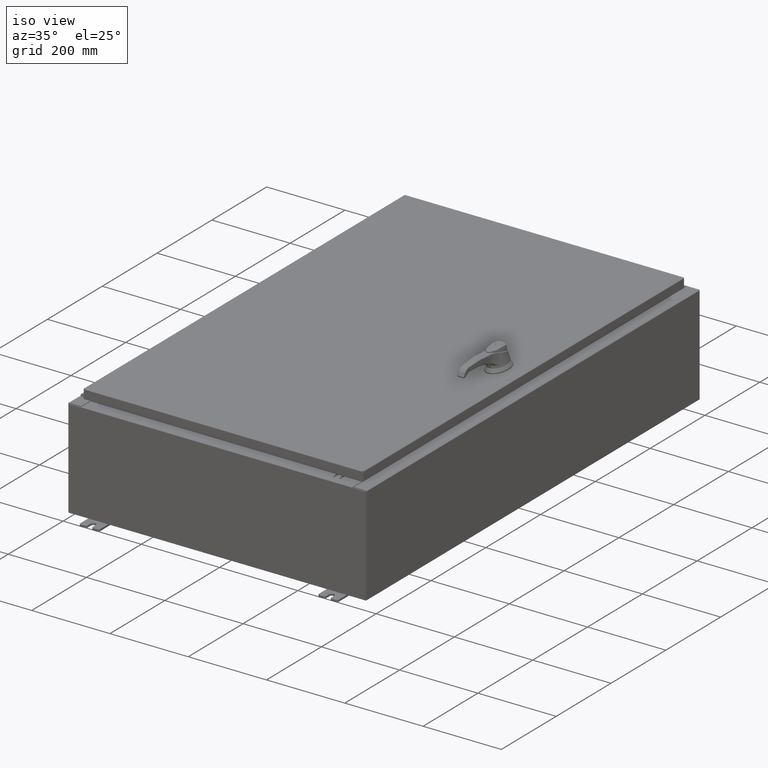
[diagram: clean part render]
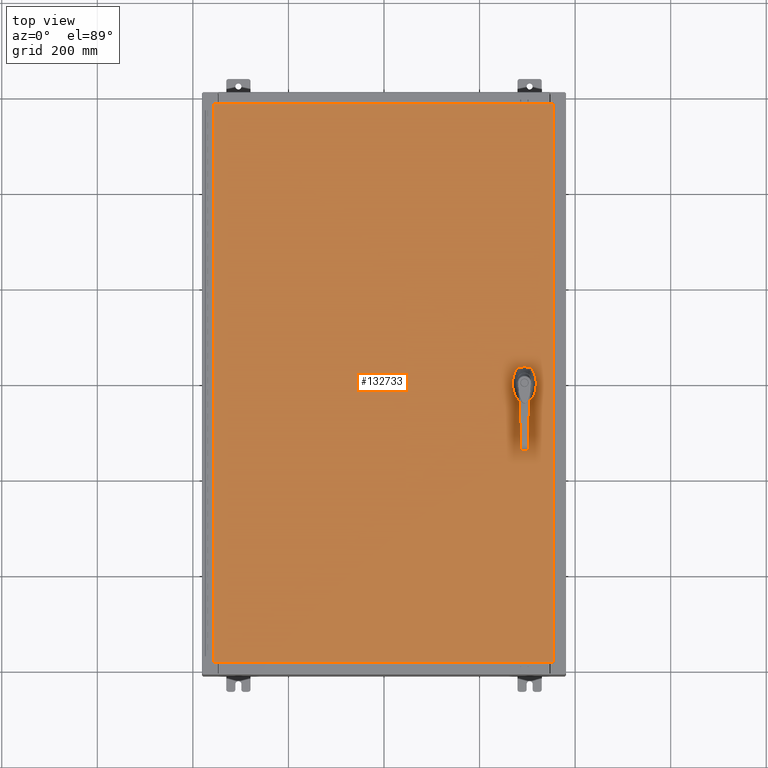
[diagram: tour spotlight — one face highlighted and labeled with its STEP entity id]
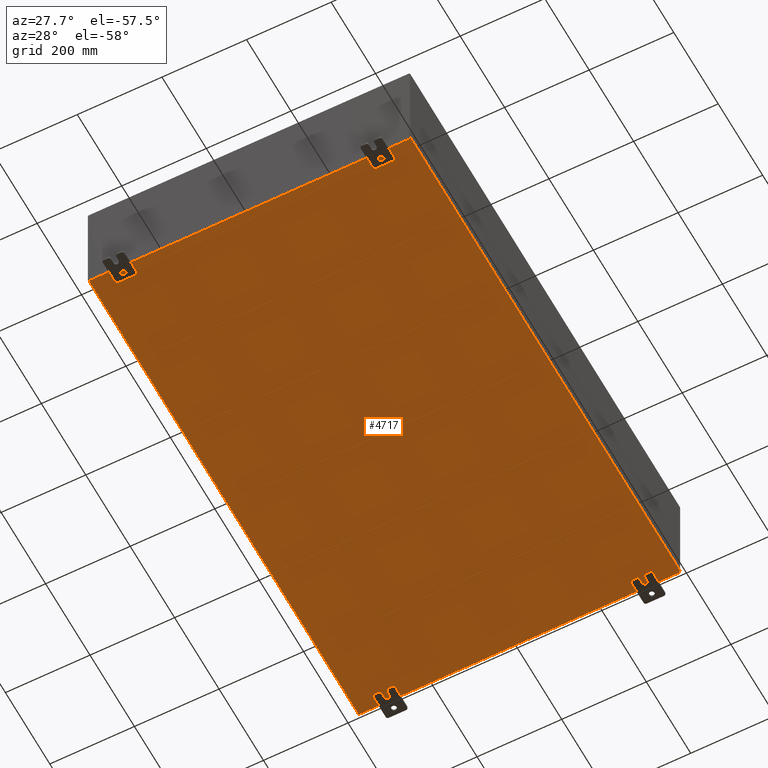
[diagram: tour spotlight — one face highlighted and labeled with its STEP entity id]
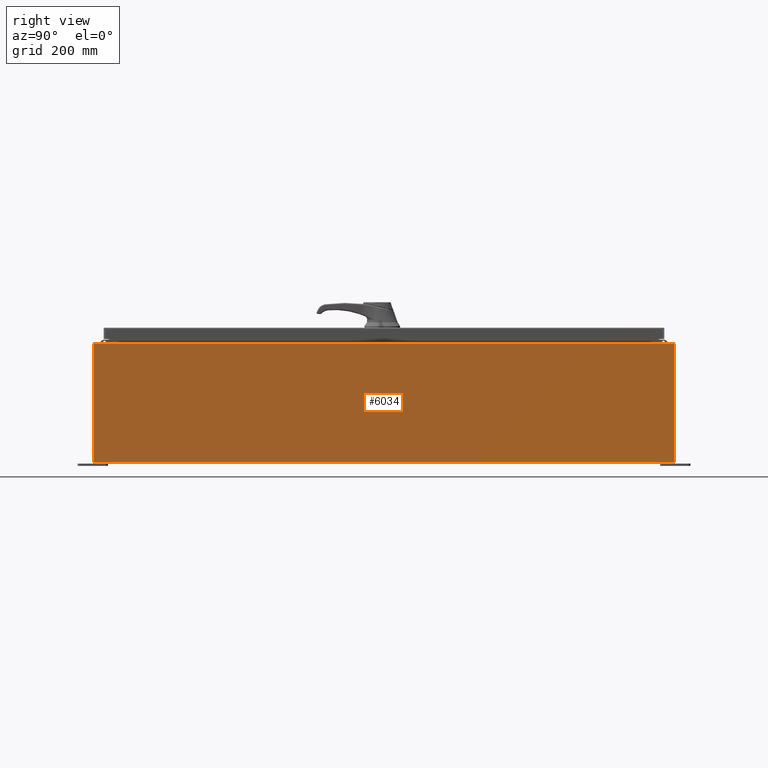
[diagram: tour spotlight — one face highlighted and labeled with its STEP entity id]
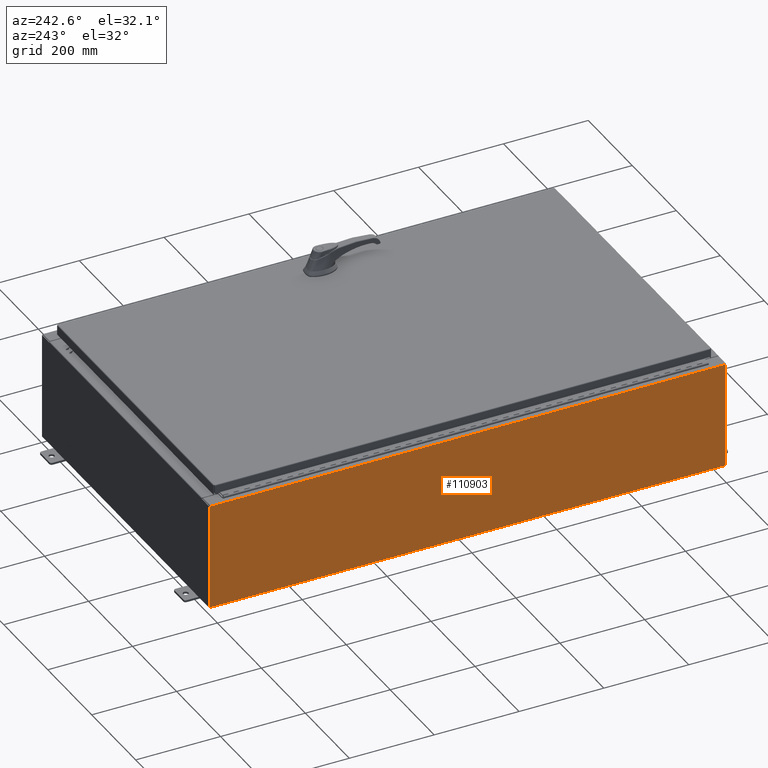
[diagram: tour spotlight — one face highlighted and labeled with its STEP entity id]
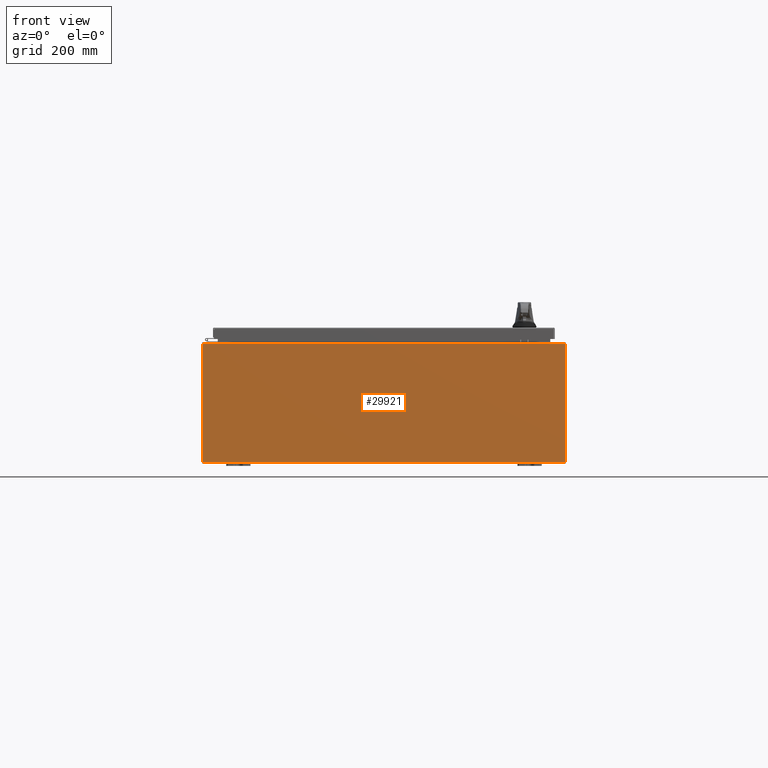
[diagram: tour spotlight — one face highlighted and labeled with its STEP entity id]
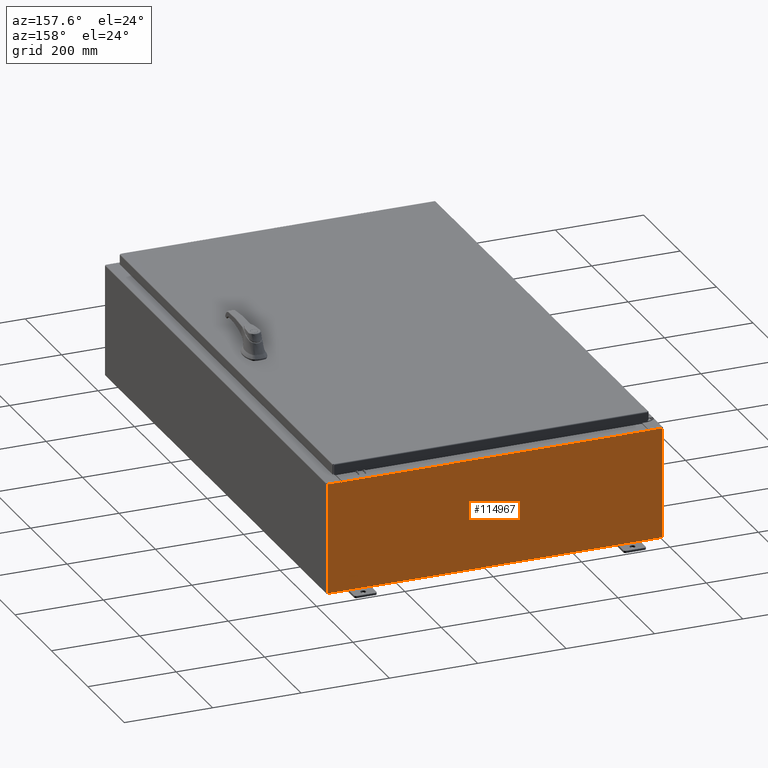
[diagram: tour spotlight — one face highlighted and labeled with its STEP entity id]
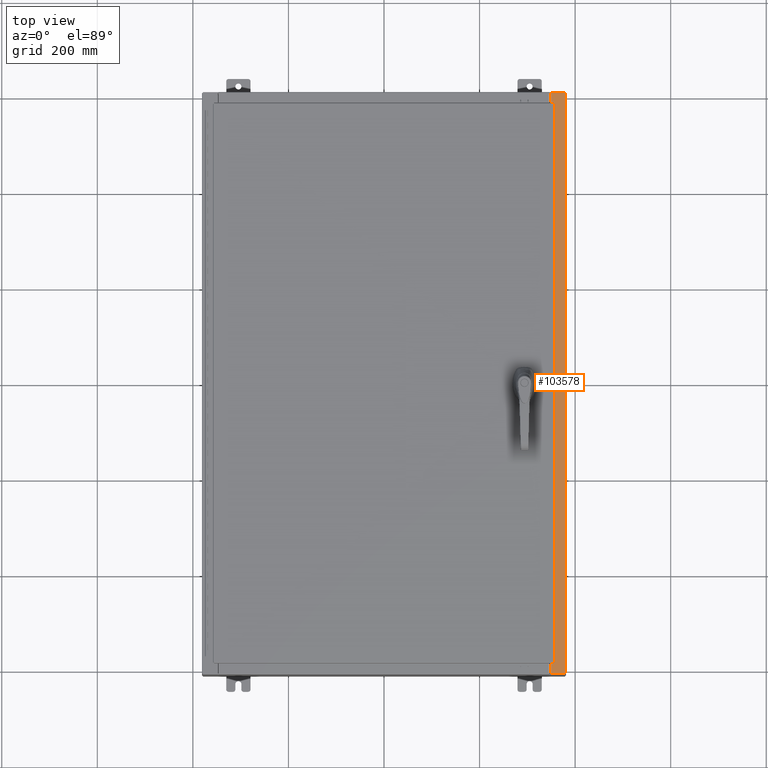
[diagram: tour spotlight — one face highlighted and labeled with its STEP entity id]
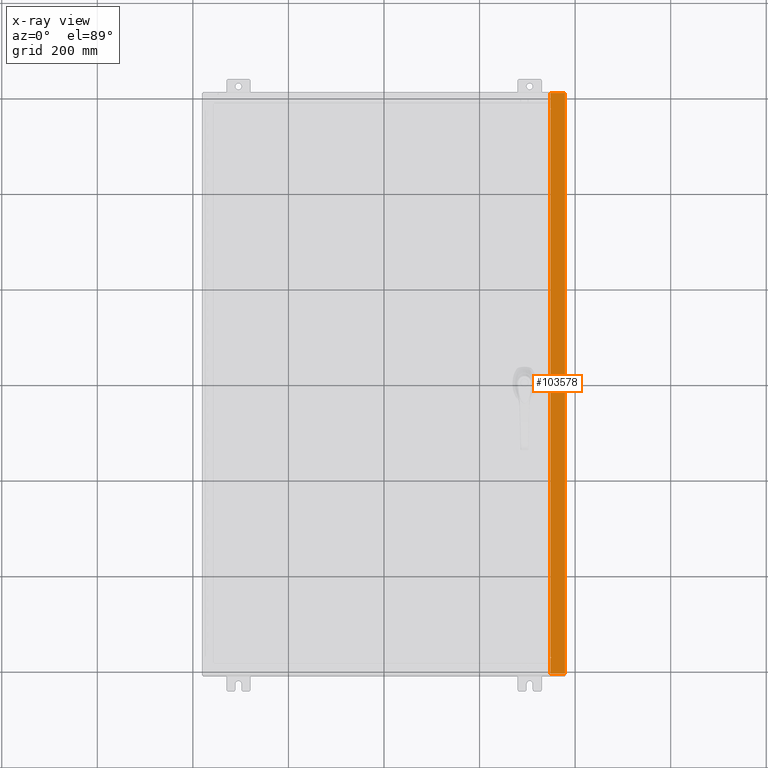
[diagram: x-ray of the same camera — body ghosted, this tour face saturated]
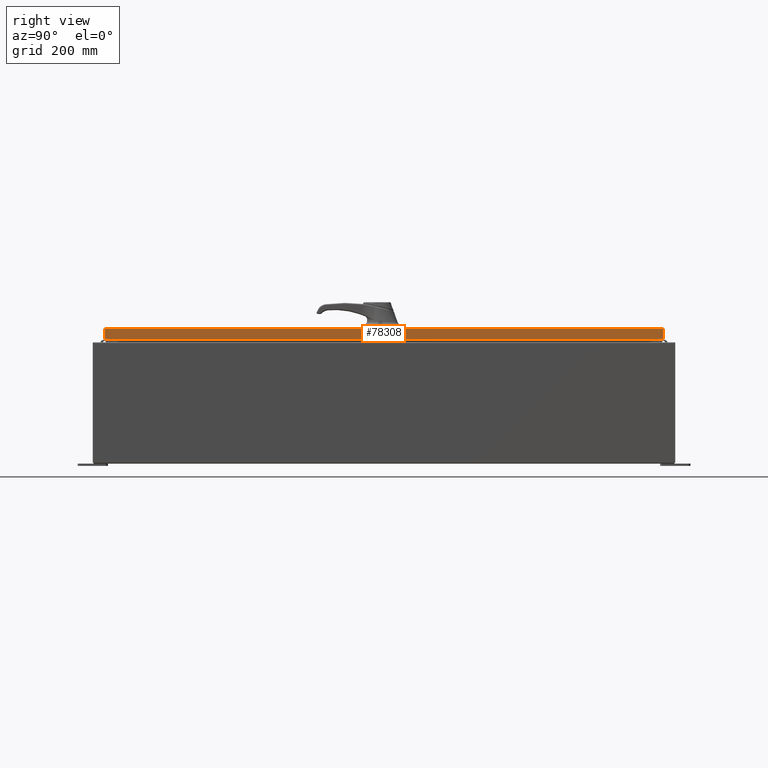
[diagram: tour spotlight — one face highlighted and labeled with its STEP entity id]
A machine part: a face-by-face anatomy tour. The part has 3182 B-rep faces; the first image is the clean iso view, then the 8 largest visible faces are spotlighted one at a time (largest first), each with its STEP entity span.

Face 1 — top view, entity #132733. In plain terms, the highlighted planar face has unit normal (0, 0, -1).
Definition (entity closure, byte-faithful):
#76 = AXIS2_PLACEMENT_3D ( 'NONE', #95451, #33978, #105793 ) ;
#6051 = LINE ( 'NONE', #80805, #91119 ) ;
#6092 = DIRECTION ( 'NONE',  ( 1.000000000000000000, 0.0000000000000000000, 0.0000000000000000000 ) ) ;
#7177 = VERTEX_POINT ( 'NONE', #32672 ) ;
#11046 = AXIS2_PLACEMENT_3D ( 'NONE', #41833, #113717, #52135 ) ;
#14487 = LINE ( 'NONE', #77845, #114141 ) ;
#14532 = LINE ( 'NONE', #124083, #59479 ) ;
#14559 = EDGE_LOOP ( 'NONE', ( #92904, #114180, #69184, #115715, #84004, #30024, #35267, #73037 ) ) ;
#15175 = VERTEX_POINT ( 'NONE', #61845 ) ;
#15653 = CARTESIAN_POINT ( 'NONE',  ( 11.98099999999992500, 0.2002273707563075900, 0.0000000000000000000 ) ) ;
#16899 = CARTESIAN_POINT ( 'NONE',  ( 11.40649999999999600, -1.338000000000000100, 0.0000000000000000000 ) ) ;
#19875 = EDGE_CURVE ( 'NONE', #90393, #56347, #6051, .T. ) ;
#22475 = AXIS2_PLACEMENT_3D ( 'NONE', #109733, #48157, #120121 ) ;
#23193 = VERTEX_POINT ( 'NONE', #118424 ) ;
#23840 = DIRECTION ( 'NONE',  ( 0.0000000000000000000, 0.0000000000000000000, -1.000000000000000000 ) ) ;
#25099 = ORIENTED_EDGE ( 'NONE', *, *, #122695, .T. ) ;
#25235 = CARTESIAN_POINT ( 'NONE',  ( 13.99029999999999800, 23.00630000000001000, 1.946441695485787500E-015 ) ) ;
#26060 = EDGE_CURVE ( 'NONE', #56347, #123203, #81964, .T. ) ;
#27794 = DIRECTION ( 'NONE',  ( -1.000000000000000000, 0.0000000000000000000, 0.0000000000000000000 ) ) ;
#28019 = VECTOR ( 'NONE', #119435, 39.37007874015748100 ) ;
#29792 = CIRCLE ( 'NONE', #22475, 0.1715000000000011500 ) ;
#30024 = ORIENTED_EDGE ( 'NONE', *, *, #65430, .F. ) ;
#32672 = CARTESIAN_POINT ( 'NONE',  ( 11.37777262924368800, 0.4029999999999252000, 0.0000000000000000000 ) ) ;
#33978 = DIRECTION ( 'NONE',  ( -0.0000000000000000000, 0.0000000000000000000, 1.000000000000000000 ) ) ;
#35267 = ORIENTED_EDGE ( 'NONE', *, *, #129996, .F. ) ;
#36678 = CARTESIAN_POINT ( 'NONE',  ( -13.99029999999999800, -23.00630000000000300, 1.946441695485787500E-015 ) ) ;
#38693 = FACE_BOUND ( 'NONE', #84970, .T. ) ;
#40354 = CIRCLE ( 'NONE', #94416, 0.4499999999999168000 ) ;
#40509 = VECTOR ( 'NONE', #98169, 39.37007874015748100 ) ;
#41279 = CARTESIAN_POINT ( 'NONE',  ( 11.57799999999999800, 0.0000000000000000000, 0.0000000000000000000 ) ) ;
#41391 = VERTEX_POINT ( 'NONE', #15653 ) ;
#41833 = CARTESIAN_POINT ( 'NONE',  ( 11.57799999999999800, 0.0000000000000000000, 0.0000000000000000000 ) ) ;
#42702 = VERTEX_POINT ( 'NONE', #25235 ) ;
#43717 = LINE ( 'NONE', #36678, #40509 ) ;
#45728 = ORIENTED_EDGE ( 'NONE', *, *, #70691, .F. ) ;
#46091 = CARTESIAN_POINT ( 'NONE',  ( 13.99029999999999800, -23.00630000000000300, -2.048885995248197400E-016 ) ) ;
#47488 = CARTESIAN_POINT ( 'NONE',  ( 13.99029999999999800, -23.00630000000000300, -2.048885995248197400E-016 ) ) ;
#48157 = DIRECTION ( 'NONE',  ( -0.0000000000000000000, 0.0000000000000000000, 1.000000000000000000 ) ) ;
#48353 = CARTESIAN_POINT ( 'NONE',  ( 11.57799999999999800, 0.0000000000000000000, 0.0000000000000000000 ) ) ;
#51338 = DIRECTION ( 'NONE',  ( 0.0000000000000000000, -1.000000000000000000, 0.0000000000000000000 ) ) ;
#51575 = DIRECTION ( 'NONE',  ( 1.000000000000000000, 0.0000000000000000000, 0.0000000000000000000 ) ) ;
#52078 = DIRECTION ( 'NONE',  ( 5.457491617345625800E-015, -1.000000000000000000, 0.0000000000000000000 ) ) ;
#52135 = DIRECTION ( 'NONE',  ( 1.000000000000000000, 0.0000000000000000000, 0.0000000000000000000 ) ) ;
#52157 = CIRCLE ( 'NONE', #104476, 0.1715000000000011500 ) ;
#53111 = CIRCLE ( 'NONE', #105484, 0.4499999999999168000 ) ;
#55266 = LINE ( 'NONE', #47488, #28019 ) ;
#56347 = VERTEX_POINT ( 'NONE', #122557 ) ;
#58671 = DIRECTION ( 'NONE',  ( 1.000000000000000000, 0.0000000000000000000, 0.0000000000000000000 ) ) ;
#59479 = VECTOR ( 'NONE', #52078, 39.37007874015748100 ) ;
#59649 = VERTEX_POINT ( 'NONE', #16899 ) ;
#60977 = AXIS2_PLACEMENT_3D ( 'NONE', #95204, #23840, #95654 ) ;
#61430 = CARTESIAN_POINT ( 'NONE',  ( 11.57799999999999800, -1.338000000000000100, 0.0000000000000000000 ) ) ;
#61669 = CARTESIAN_POINT ( 'NONE',  ( -13.99029999999999800, 23.00630000000000300, -2.048885995248197400E-016 ) ) ;
#61845 = CARTESIAN_POINT ( 'NONE',  ( 11.77822737075630700, 0.4029999999999252000, 0.0000000000000000000 ) ) ;
#62530 = LINE ( 'NONE', #61669, #104316 ) ;
#62703 = EDGE_CURVE ( 'NONE', #88351, #97739, #53111, .T. ) ;
#63285 = EDGE_CURVE ( 'NONE', #123203, #88351, #14487, .T. ) ;
#64571 = VECTOR ( 'NONE', #95749, 39.37007874015748100 ) ;
#65430 = EDGE_CURVE ( 'NONE', #7177, #90393, #40354, .T. ) ;
#69184 = ORIENTED_EDGE ( 'NONE', *, *, #63285, .F. ) ;
#69740 = EDGE_CURVE ( 'NONE', #41391, #15175, #111911, .T. ) ;
#70691 = EDGE_CURVE ( 'NONE', #73940, #59649, #29792, .T. ) ;
#71674 = DIRECTION ( 'NONE',  ( 1.000000000000000000, 0.0000000000000000000, 0.0000000000000000000 ) ) ;
#73037 = ORIENTED_EDGE ( 'NONE', *, *, #69740, .F. ) ;
#73399 = CARTESIAN_POINT ( 'NONE',  ( 11.98099999999992700, -0.2002273707563079800, 0.0000000000000000000 ) ) ;
#73940 = VERTEX_POINT ( 'NONE', #115493 ) ;
#74005 = ORIENTED_EDGE ( 'NONE', *, *, #78993, .T. ) ;
#77845 = CARTESIAN_POINT ( 'NONE',  ( 0.0000000000000000000, -0.4029999999999252000, 0.0000000000000000000 ) ) ;
#78993 = EDGE_CURVE ( 'NONE', #94256, #23193, #62530, .T. ) ;
#79581 = ORIENTED_EDGE ( 'NONE', *, *, #90872, .T. ) ;
#80805 = CARTESIAN_POINT ( 'NONE',  ( 11.17500000000007000, 0.0000000000000000000, 0.0000000000000000000 ) ) ;
#81664 = CARTESIAN_POINT ( 'NONE',  ( -13.99029999999999800, 23.00630000000001000, -2.048885995248197400E-016 ) ) ;
#81964 = CIRCLE ( 'NONE', #11046, 0.4499999999999168000 ) ;
#82442 = VECTOR ( 'NONE', #27794, 39.37007874015748100 ) ;
#83378 = EDGE_CURVE ( 'NONE', #41391, #97739, #14532, .T. ) ;
#84004 = ORIENTED_EDGE ( 'NONE', *, *, #19875, .F. ) ;
#84970 = EDGE_LOOP ( 'NONE', ( #45728, #105997 ) ) ;
#85249 = PLANE ( 'NONE',  #60977 ) ;
#85357 = CARTESIAN_POINT ( 'NONE',  ( 13.99029999999999800, 23.00630000000001000, 1.946441695485787500E-015 ) ) ;
#88351 = VERTEX_POINT ( 'NONE', #92901 ) ;
#90393 = VERTEX_POINT ( 'NONE', #132452 ) ;
#90872 = EDGE_CURVE ( 'NONE', #42702, #94256, #91927, .T. ) ;
#91119 = VECTOR ( 'NONE', #111479, 39.37007874015748100 ) ;
#91927 = LINE ( 'NONE', #85357, #64571 ) ;
#92901 = CARTESIAN_POINT ( 'NONE',  ( 11.77822737075630700, -0.4029999999999252000, 0.0000000000000000000 ) ) ;
#92904 = ORIENTED_EDGE ( 'NONE', *, *, #83378, .T. ) ;
#94256 = VERTEX_POINT ( 'NONE', #81664 ) ;
#94416 = AXIS2_PLACEMENT_3D ( 'NONE', #41279, #113181, #51575 ) ;
#95204 = CARTESIAN_POINT ( 'NONE',  ( 0.0000000000000000000, 0.0000000000000000000, 0.0000000000000000000 ) ) ;
#95451 = CARTESIAN_POINT ( 'NONE',  ( 11.57799999999999800, 0.0000000000000000000, 0.0000000000000000000 ) ) ;
#95654 = DIRECTION ( 'NONE',  ( -1.000000000000000000, 0.0000000000000000000, -0.0000000000000000000 ) ) ;
#95749 = DIRECTION ( 'NONE',  ( -1.000000000000000000, -0.0000000000000000000, -0.0000000000000000000 ) ) ;
#97491 = EDGE_LOOP ( 'NONE', ( #25099, #130630, #79581, #74005 ) ) ;
#97739 = VERTEX_POINT ( 'NONE', #73399 ) ;
#98169 = DIRECTION ( 'NONE',  ( 1.000000000000000000, -0.0000000000000000000, -0.0000000000000000000 ) ) ;
#100557 = EDGE_CURVE ( 'NONE', #59649, #73940, #52157, .T. ) ;
#104316 = VECTOR ( 'NONE', #51338, 39.37007874015748100 ) ;
#104476 = AXIS2_PLACEMENT_3D ( 'NONE', #61430, #133432, #71674 ) ;
#105484 = AXIS2_PLACEMENT_3D ( 'NONE', #48353, #120312, #58671 ) ;
#105793 = DIRECTION ( 'NONE',  ( 1.000000000000000000, 0.0000000000000000000, 0.0000000000000000000 ) ) ;
#105997 = ORIENTED_EDGE ( 'NONE', *, *, #100557, .F. ) ;
#109733 = CARTESIAN_POINT ( 'NONE',  ( 11.57799999999999800, -1.338000000000000100, 0.0000000000000000000 ) ) ;
#111479 = DIRECTION ( 'NONE',  ( 0.0000000000000000000, -1.000000000000000000, 0.0000000000000000000 ) ) ;
#111911 = CIRCLE ( 'NONE', #76, 0.4499999999999168000 ) ;
#113117 = LINE ( 'NONE', #120833, #82442 ) ;
#113181 = DIRECTION ( 'NONE',  ( -0.0000000000000000000, 0.0000000000000000000, 1.000000000000000000 ) ) ;
#113717 = DIRECTION ( 'NONE',  ( -0.0000000000000000000, 0.0000000000000000000, 1.000000000000000000 ) ) ;
#114141 = VECTOR ( 'NONE', #6092, 39.37007874015748100 ) ;
#114180 = ORIENTED_EDGE ( 'NONE', *, *, #62703, .F. ) ;
#114309 = CARTESIAN_POINT ( 'NONE',  ( 11.37777262924368800, -0.4029999999999252000, 0.0000000000000000000 ) ) ;
#115493 = CARTESIAN_POINT ( 'NONE',  ( 11.74949999999999900, -1.338000000000000100, 0.0000000000000000000 ) ) ;
#115715 = ORIENTED_EDGE ( 'NONE', *, *, #26060, .F. ) ;
#118424 = CARTESIAN_POINT ( 'NONE',  ( -13.99029999999999800, -23.00630000000000300, 1.946441695485787500E-015 ) ) ;
#119435 = DIRECTION ( 'NONE',  ( 0.0000000000000000000, 1.000000000000000000, 0.0000000000000000000 ) ) ;
#120121 = DIRECTION ( 'NONE',  ( 1.000000000000000000, 0.0000000000000000000, 0.0000000000000000000 ) ) ;
#120312 = DIRECTION ( 'NONE',  ( -0.0000000000000000000, 0.0000000000000000000, 1.000000000000000000 ) ) ;
#120572 = EDGE_CURVE ( 'NONE', #128910, #42702, #55266, .T. ) ;
#120781 = FACE_BOUND ( 'NONE', #14559, .T. ) ;
#120833 = CARTESIAN_POINT ( 'NONE',  ( 0.0000000000000000000, 0.4029999999999252000, 0.0000000000000000000 ) ) ;
#122557 = CARTESIAN_POINT ( 'NONE',  ( 11.17500000000007000, -0.2002273707563079800, 0.0000000000000000000 ) ) ;
#122695 = EDGE_CURVE ( 'NONE', #23193, #128910, #43717, .T. ) ;
#123203 = VERTEX_POINT ( 'NONE', #114309 ) ;
#124020 = FACE_OUTER_BOUND ( 'NONE', #97491, .T. ) ;
#124083 = CARTESIAN_POINT ( 'NONE',  ( 11.98099999999992500, 6.538620706741752400E-014, 0.0000000000000000000 ) ) ;
#128910 = VERTEX_POINT ( 'NONE', #46091 ) ;
#129996 = EDGE_CURVE ( 'NONE', #15175, #7177, #113117, .T. ) ;
#130630 = ORIENTED_EDGE ( 'NONE', *, *, #120572, .T. ) ;
#132452 = CARTESIAN_POINT ( 'NONE',  ( 11.17500000000007000, 0.2002273707563079800, 0.0000000000000000000 ) ) ;
#132733 = ADVANCED_FACE ( 'NONE', ( #38693, #124020, #120781 ), #85249, .F. ) ;
#133432 = DIRECTION ( 'NONE',  ( -0.0000000000000000000, 0.0000000000000000000, 1.000000000000000000 ) ) ;

Face 2 — auxiliary view, entity #4717. In plain terms, the highlighted planar face has unit normal (0, 0, -1).
Definition (entity closure, byte-faithful):
#1198 = AXIS2_PLACEMENT_3D ( 'NONE', #93350, #57487, #17866 ) ;
#4717 = ADVANCED_FACE ( 'NONE', ( #75327 ), #88959, .T. ) ;
#6767 = VECTOR ( 'NONE', #27146, 39.37007874015748100 ) ;
#8204 = VERTEX_POINT ( 'NONE', #14965 ) ;
#11616 = EDGE_CURVE ( 'NONE', #66672, #8204, #41948, .T. ) ;
#14868 = VECTOR ( 'NONE', #56118, 39.37007874015748100 ) ;
#14965 = CARTESIAN_POINT ( 'NONE',  ( 14.91229999999999800, -23.92529999999999600, -0.07470000000000000300 ) ) ;
#17866 = DIRECTION ( 'NONE',  ( -1.000000000000000000, 0.0000000000000000000, -0.0000000000000000000 ) ) ;
#18102 = LINE ( 'NONE', #97021, #14868 ) ;
#27146 = DIRECTION ( 'NONE',  ( -1.000000000000000000, -0.0000000000000000000, -0.0000000000000000000 ) ) ;
#36082 = VERTEX_POINT ( 'NONE', #114815 ) ;
#37023 = EDGE_CURVE ( 'NONE', #36082, #8204, #18102, .T. ) ;
#37478 = CARTESIAN_POINT ( 'NONE',  ( -15.00000000000000400, 23.92530000000000400, -0.07470000000000000300 ) ) ;
#37615 = CARTESIAN_POINT ( 'NONE',  ( 14.91229999999999800, 23.92529999999998900, -0.07470000000000300000 ) ) ;
#41046 = CARTESIAN_POINT ( 'NONE',  ( -14.91230000000000200, 23.92529999999998900, -0.07470000000000000300 ) ) ;
#41948 = LINE ( 'NONE', #83709, #65957 ) ;
#47467 = ORIENTED_EDGE ( 'NONE', *, *, #112950, .T. ) ;
#56118 = DIRECTION ( 'NONE',  ( 1.000000000000000000, 1.456985596620940400E-016, 0.0000000000000000000 ) ) ;
#57487 = DIRECTION ( 'NONE',  ( 0.0000000000000000000, 0.0000000000000000000, -1.000000000000000000 ) ) ;
#61332 = LINE ( 'NONE', #37478, #6767 ) ;
#64687 = EDGE_CURVE ( 'NONE', #66672, #109803, #61332, .T. ) ;
#65957 = VECTOR ( 'NONE', #70174, 39.37007874015748100 ) ;
#66672 = VERTEX_POINT ( 'NONE', #37615 ) ;
#66698 = ORIENTED_EDGE ( 'NONE', *, *, #64687, .F. ) ;
#70174 = DIRECTION ( 'NONE',  ( -0.0000000000000000000, -1.000000000000000000, 8.208677865577646300E-017 ) ) ;
#74535 = LINE ( 'NONE', #107120, #101933 ) ;
#75327 = FACE_OUTER_BOUND ( 'NONE', #122956, .T. ) ;
#76487 = DIRECTION ( 'NONE',  ( -0.0000000000000000000, 1.000000000000000000, -0.0000000000000000000 ) ) ;
#83709 = CARTESIAN_POINT ( 'NONE',  ( 14.91229999999999800, 23.92530000000000000, -0.07470000000000300000 ) ) ;
#88959 = PLANE ( 'NONE',  #1198 ) ;
#93350 = CARTESIAN_POINT ( 'NONE',  ( 0.0000000000000000000, 0.0000000000000000000, -0.07470000000000000300 ) ) ;
#94167 = ORIENTED_EDGE ( 'NONE', *, *, #11616, .T. ) ;
#97021 = CARTESIAN_POINT ( 'NONE',  ( -15.00000000000000400, -23.92530000000000000, -0.07470000000000000300 ) ) ;
#101933 = VECTOR ( 'NONE', #76487, 39.37007874015748100 ) ;
#105174 = ORIENTED_EDGE ( 'NONE', *, *, #37023, .F. ) ;
#107120 = CARTESIAN_POINT ( 'NONE',  ( -14.91230000000000200, -23.92529999999998900, -0.07469999999999994700 ) ) ;
#109803 = VERTEX_POINT ( 'NONE', #41046 ) ;
#112950 = EDGE_CURVE ( 'NONE', #36082, #109803, #74535, .T. ) ;
#114815 = CARTESIAN_POINT ( 'NONE',  ( -14.91230000000000200, -23.92529999999998200, -0.07469999999999994700 ) ) ;
#122956 = EDGE_LOOP ( 'NONE', ( #105174, #47467, #66698, #94167 ) ) ;

Face 3 — right view, entity #6034. In plain terms, the highlighted planar face has unit normal (-1, 0, 0).
Definition (entity closure, byte-faithful):
#3591 = LINE ( 'NONE', #80049, #27662 ) ;
#6034 = ADVANCED_FACE ( 'NONE', ( #84691 ), #91968, .F. ) ;
#6478 = DIRECTION ( 'NONE',  ( 1.609096119163526300E-031, -1.000000000000000000, 4.567295697298285000E-017 ) ) ;
#8971 = DIRECTION ( 'NONE',  ( 3.523082860860887800E-015, 0.0000000000000000000, 1.000000000000000000 ) ) ;
#10655 = EDGE_CURVE ( 'NONE', #75331, #29591, #3591, .T. ) ;
#26125 = VECTOR ( 'NONE', #111065, 39.37007874015748100 ) ;
#27662 = VECTOR ( 'NONE', #37343, 39.37007874015748100 ) ;
#28814 = LINE ( 'NONE', #50910, #56077 ) ;
#29591 = VERTEX_POINT ( 'NONE', #113946 ) ;
#35971 = CARTESIAN_POINT ( 'NONE',  ( 15.00000000000003400, 23.92529999999998600, 9.837599999999994800 ) ) ;
#37343 = DIRECTION ( 'NONE',  ( -3.523082860860888200E-015, 0.0000000000000000000, -1.000000000000000000 ) ) ;
#38432 = ORIENTED_EDGE ( 'NONE', *, *, #131300, .T. ) ;
#40386 = VECTOR ( 'NONE', #6478, 39.37007874015748100 ) ;
#43162 = DIRECTION ( 'NONE',  ( -1.000000000000000000, 0.0000000000000000000, 3.523082860860887800E-015 ) ) ;
#48077 = CARTESIAN_POINT ( 'NONE',  ( 14.99999999999999800, 0.0000000000000000000, -5.310705656892488900E-014 ) ) ;
#48557 = AXIS2_PLACEMENT_3D ( 'NONE', #48077, #43162, #8971 ) ;
#49326 = VERTEX_POINT ( 'NONE', #35971 ) ;
#49474 = CARTESIAN_POINT ( 'NONE',  ( 15.00000000000003400, 23.92529999999999600, 9.837599999999994800 ) ) ;
#50910 = CARTESIAN_POINT ( 'NONE',  ( 14.99999999999999800, 23.92529999999999600, -5.310705656892488900E-014 ) ) ;
#54331 = EDGE_LOOP ( 'NONE', ( #38432, #97962, #109494, #85234 ) ) ;
#56077 = VECTOR ( 'NONE', #102120, 39.37007874015748100 ) ;
#75331 = VERTEX_POINT ( 'NONE', #126387 ) ;
#78968 = EDGE_CURVE ( 'NONE', #92988, #49326, #28814, .T. ) ;
#80049 = CARTESIAN_POINT ( 'NONE',  ( 14.99999999999999800, -23.92529999999998600, -5.310705656892488900E-014 ) ) ;
#84691 = FACE_OUTER_BOUND ( 'NONE', #54331, .T. ) ;
#85234 = ORIENTED_EDGE ( 'NONE', *, *, #78968, .T. ) ;
#91968 = PLANE ( 'NONE',  #48557 ) ;
#92988 = VERTEX_POINT ( 'NONE', #117203 ) ;
#97962 = ORIENTED_EDGE ( 'NONE', *, *, #10655, .T. ) ;
#102120 = DIRECTION ( 'NONE',  ( 3.523082860860888200E-015, 0.0000000000000000000, 1.000000000000000000 ) ) ;
#109494 = ORIENTED_EDGE ( 'NONE', *, *, #132277, .F. ) ;
#111065 = DIRECTION ( 'NONE',  ( -0.0000000000000000000, -1.000000000000000000, -0.0000000000000000000 ) ) ;
#113946 = CARTESIAN_POINT ( 'NONE',  ( 14.99999999999999800, -23.92529999999998200, 0.01300000000000071400 ) ) ;
#117203 = CARTESIAN_POINT ( 'NONE',  ( 14.99999999999999800, 23.92529999999998900, 0.01299999999999766100 ) ) ;
#119267 = CARTESIAN_POINT ( 'NONE',  ( 14.99999999999999800, -23.92529999999998600, 0.01299999999999984700 ) ) ;
#122484 = LINE ( 'NONE', #119267, #40386 ) ;
#126387 = CARTESIAN_POINT ( 'NONE',  ( 15.00000000000003400, -23.92529999999998600, 9.837600000000001900 ) ) ;
#131300 = EDGE_CURVE ( 'NONE', #49326, #75331, #132276, .T. ) ;
#132276 = LINE ( 'NONE', #49474, #26125 ) ;
#132277 = EDGE_CURVE ( 'NONE', #92988, #29591, #122484, .T. ) ;

Face 4 — auxiliary view, entity #110903. In plain terms, the highlighted planar face has unit normal (1, 0, 0).
Definition (entity closure, byte-faithful):
#4178 = VERTEX_POINT ( 'NONE', #68856 ) ;
#4620 = AXIS2_PLACEMENT_3D ( 'NONE', #37607, #119887, #58230 ) ;
#7491 = FACE_OUTER_BOUND ( 'NONE', #23639, .T. ) ;
#18469 = VERTEX_POINT ( 'NONE', #89935 ) ;
#18686 = CARTESIAN_POINT ( 'NONE',  ( -15.00000000000000400, -23.92529999999998900, -5.310705656892490100E-014 ) ) ;
#23639 = EDGE_LOOP ( 'NONE', ( #49335, #25297, #120209, #90315 ) ) ;
#25297 = ORIENTED_EDGE ( 'NONE', *, *, #84698, .T. ) ;
#32608 = LINE ( 'NONE', #95831, #83888 ) ;
#37607 = CARTESIAN_POINT ( 'NONE',  ( -15.00000000000000400, 0.0000000000000000000, -5.310705656892490100E-014 ) ) ;
#44849 = EDGE_CURVE ( 'NONE', #4178, #76045, #110772, .T. ) ;
#49335 = ORIENTED_EDGE ( 'NONE', *, *, #44849, .T. ) ;
#50133 = DIRECTION ( 'NONE',  ( -3.523082860860888200E-015, 0.0000000000000000000, 1.000000000000000000 ) ) ;
#53889 = EDGE_CURVE ( 'NONE', #73771, #18469, #32608, .T. ) ;
#54313 = DIRECTION ( 'NONE',  ( 0.0000000000000000000, 1.000000000000000000, 0.0000000000000000000 ) ) ;
#58230 = DIRECTION ( 'NONE',  ( 3.523082860860887800E-015, 0.0000000000000000000, -1.000000000000000000 ) ) ;
#68856 = CARTESIAN_POINT ( 'NONE',  ( -15.00000000000003700, -23.92529999999998200, 9.837599999999998300 ) ) ;
#70023 = VECTOR ( 'NONE', #50133, 39.37007874015748100 ) ;
#73771 = VERTEX_POINT ( 'NONE', #82166 ) ;
#76045 = VERTEX_POINT ( 'NONE', #110428 ) ;
#82166 = CARTESIAN_POINT ( 'NONE',  ( -15.00000000000000400, -23.92529999999998200, 0.01299999999999984700 ) ) ;
#82247 = CARTESIAN_POINT ( 'NONE',  ( -15.00000000000000400, 23.92529999999999600, -5.310705656892490100E-014 ) ) ;
#83312 = VECTOR ( 'NONE', #54313, 39.37007874015748100 ) ;
#83888 = VECTOR ( 'NONE', #85439, 39.37007874015748100 ) ;
#84698 = EDGE_CURVE ( 'NONE', #76045, #18469, #120435, .T. ) ;
#85129 = DIRECTION ( 'NONE',  ( 3.523082860860888200E-015, 0.0000000000000000000, -1.000000000000000000 ) ) ;
#85439 = DIRECTION ( 'NONE',  ( -0.0000000000000000000, 1.000000000000000000, -0.0000000000000000000 ) ) ;
#89935 = CARTESIAN_POINT ( 'NONE',  ( -15.00000000000000400, 23.92529999999998900, 0.01299999999999984300 ) ) ;
#90315 = ORIENTED_EDGE ( 'NONE', *, *, #111062, .T. ) ;
#92957 = VECTOR ( 'NONE', #85129, 39.37007874015748100 ) ;
#95211 = CARTESIAN_POINT ( 'NONE',  ( -15.00000000000003700, -23.92529999999998600, 9.837599999999998300 ) ) ;
#95831 = CARTESIAN_POINT ( 'NONE',  ( -15.00000000000000400, 23.92529999999999600, 0.01299999999999984700 ) ) ;
#97399 = LINE ( 'NONE', #18686, #70023 ) ;
#109492 = PLANE ( 'NONE',  #4620 ) ;
#110428 = CARTESIAN_POINT ( 'NONE',  ( -15.00000000000003700, 23.92529999999999600, 9.837599999999998300 ) ) ;
#110772 = LINE ( 'NONE', #95211, #83312 ) ;
#110903 = ADVANCED_FACE ( 'NONE', ( #7491 ), #109492, .F. ) ;
#111062 = EDGE_CURVE ( 'NONE', #73771, #4178, #97399, .T. ) ;
#119887 = DIRECTION ( 'NONE',  ( 1.000000000000000000, 0.0000000000000000000, 3.523082860860887800E-015 ) ) ;
#120209 = ORIENTED_EDGE ( 'NONE', *, *, #53889, .F. ) ;
#120435 = LINE ( 'NONE', #82247, #92957 ) ;

Face 5 — front view, entity #29921. In plain terms, the highlighted planar face has unit normal (-0, 1, -0).
Definition (entity closure, byte-faithful):
#1227 = VERTEX_POINT ( 'NONE', #117907 ) ;
#1927 = VECTOR ( 'NONE', #34800, 39.37007874015748100 ) ;
#2213 = DIRECTION ( 'NONE',  ( 0.0000000000000000000, 0.0000000000000000000, -1.000000000000000000 ) ) ;
#9660 = DIRECTION ( 'NONE',  ( 0.0000000000000000000, -0.0000000000000000000, -1.000000000000000000 ) ) ;
#11549 = VECTOR ( 'NONE', #81662, 39.37007874015748100 ) ;
#11609 = CARTESIAN_POINT ( 'NONE',  ( -13.65587500000000000, 0.0000000000000000000, 4.874950000000000100 ) ) ;
#12465 = FACE_OUTER_BOUND ( 'NONE', #79118, .T. ) ;
#12553 = VECTOR ( 'NONE', #92803, 39.37007874015748100 ) ;
#13732 = CARTESIAN_POINT ( 'NONE',  ( -13.67455000000000000, 0.0000000000000000000, 4.925300000000000000 ) ) ;
#15204 = CARTESIAN_POINT ( 'NONE',  ( -13.63720000000000400, -7.171100983368691200E-016, 4.912300000000000100 ) ) ;
#19014 = LINE ( 'NONE', #102743, #12553 ) ;
#19485 = VECTOR ( 'NONE', #25528, 39.37007874015748100 ) ;
#20002 = VERTEX_POINT ( 'NONE', #71782 ) ;
#20770 = VERTEX_POINT ( 'NONE', #53520 ) ;
#20813 = CARTESIAN_POINT ( 'NONE',  ( -13.67455000000000000, 0.0000000000000000000, 4.874950000000000100 ) ) ;
#21953 = DIRECTION ( 'NONE',  ( 0.0000000000000000000, 0.0000000000000000000, -1.000000000000000000 ) ) ;
#25528 = DIRECTION ( 'NONE',  ( 1.000000000000000000, 0.0000000000000000000, 0.0000000000000000000 ) ) ;
#27467 = DIRECTION ( 'NONE',  ( 0.0000000000000000000, 0.0000000000000000000, 1.000000000000000000 ) ) ;
#27487 = VERTEX_POINT ( 'NONE', #34368 ) ;
#28830 = CIRCLE ( 'NONE', #93009, 0.01867499999999949400 ) ;
#29921 = ADVANCED_FACE ( 'NONE', ( #12465 ), #70624, .F. ) ;
#30030 = CARTESIAN_POINT ( 'NONE',  ( 14.92529999999999800, 0.0000000000000000000, 4.925300000000000000 ) ) ;
#30042 = ORIENTED_EDGE ( 'NONE', *, *, #92056, .F. ) ;
#31499 = CARTESIAN_POINT ( 'NONE',  ( 13.67454999999978500, -0.0000000000000000000, -5.935537951421795000E-013 ) ) ;
#32431 = CIRCLE ( 'NONE', #54870, 0.01867499999999949400 ) ;
#33268 = EDGE_CURVE ( 'NONE', #99632, #20770, #47588, .T. ) ;
#34368 = CARTESIAN_POINT ( 'NONE',  ( 13.67454999999999800, 0.0000000000000000000, 4.874950000000000100 ) ) ;
#34800 = DIRECTION ( 'NONE',  ( 1.000000000000000000, 0.0000000000000000000, 0.0000000000000000000 ) ) ;
#37278 = ORIENTED_EDGE ( 'NONE', *, *, #33268, .F. ) ;
#38426 = CARTESIAN_POINT ( 'NONE',  ( -13.63720000000000000, -0.0000000000000000000, 0.0000000000000000000 ) ) ;
#39663 = ORIENTED_EDGE ( 'NONE', *, *, #57388, .F. ) ;
#40582 = DIRECTION ( 'NONE',  ( 1.000000000000000000, 0.0000000000000000000, 0.0000000000000000000 ) ) ;
#44052 = CARTESIAN_POINT ( 'NONE',  ( 13.63719999999999800, 0.0000000000000000000, 4.912300000000000100 ) ) ;
#44393 = LINE ( 'NONE', #67844, #95821 ) ;
#45959 = VERTEX_POINT ( 'NONE', #44052 ) ;
#46955 = LINE ( 'NONE', #130990, #129069 ) ;
#47588 = LINE ( 'NONE', #38426, #102231 ) ;
#52731 = ORIENTED_EDGE ( 'NONE', *, *, #132102, .T. ) ;
#53242 = LINE ( 'NONE', #55388, #1927 ) ;
#53520 = CARTESIAN_POINT ( 'NONE',  ( -13.63720000000000000, -0.0000000000000000000, 4.874950000000000100 ) ) ;
#54870 = AXIS2_PLACEMENT_3D ( 'NONE', #125301, #63598, #2213 ) ;
#55388 = CARTESIAN_POINT ( 'NONE',  ( -14.92530000000000200, 0.0000000000000000000, 4.925300000000000000 ) ) ;
#57388 = EDGE_CURVE ( 'NONE', #20770, #79002, #28830, .T. ) ;
#57594 = CARTESIAN_POINT ( 'NONE',  ( 13.63719999999999800, 0.0000000000000000000, 4.874950000000000100 ) ) ;
#60068 = VERTEX_POINT ( 'NONE', #30030 ) ;
#60858 = VERTEX_POINT ( 'NONE', #97648 ) ;
#61112 = EDGE_CURVE ( 'NONE', #132260, #45959, #46955, .T. ) ;
#61983 = DIRECTION ( 'NONE',  ( -4.340572780400004900E-014, 0.0000000000000000000, -1.000000000000000000 ) ) ;
#63598 = DIRECTION ( 'NONE',  ( -0.0000000000000000000, 1.000000000000000000, -0.0000000000000000000 ) ) ;
#63975 = ORIENTED_EDGE ( 'NONE', *, *, #76625, .T. ) ;
#66110 = LINE ( 'NONE', #92028, #11549 ) ;
#66412 = EDGE_CURVE ( 'NONE', #27487, #132260, #32431, .T. ) ;
#67844 = CARTESIAN_POINT ( 'NONE',  ( -14.92530000000000200, 0.0000000000000000000, -4.925300000000000000 ) ) ;
#69264 = DIRECTION ( 'NONE',  ( 0.0000000000000000000, 0.0000000000000000000, 1.000000000000000000 ) ) ;
#70140 = LINE ( 'NONE', #80304, #100743 ) ;
#70624 = PLANE ( 'NONE',  #113829 ) ;
#71081 = DIRECTION ( 'NONE',  ( 0.0000000000000000000, -1.000000000000000000, 0.0000000000000000000 ) ) ;
#71782 = CARTESIAN_POINT ( 'NONE',  ( -14.92530000000000200, 0.0000000000000000000, -4.925300000000000000 ) ) ;
#72418 = VECTOR ( 'NONE', #61983, 39.37007874015748100 ) ;
#75748 = ORIENTED_EDGE ( 'NONE', *, *, #110397, .F. ) ;
#76507 = ORIENTED_EDGE ( 'NONE', *, *, #61112, .F. ) ;
#76625 = EDGE_CURVE ( 'NONE', #60068, #60858, #66110, .T. ) ;
#78157 = DIRECTION ( 'NONE',  ( -1.000000000000000000, -0.0000000000000000000, -0.0000000000000000000 ) ) ;
#78494 = LINE ( 'NONE', #122901, #102680 ) ;
#79002 = VERTEX_POINT ( 'NONE', #20813 ) ;
#79118 = EDGE_LOOP ( 'NONE', ( #75748, #39663, #37278, #92512, #76507, #92748, #30042, #110618, #63975, #133243, #99481, #52731 ) ) ;
#80304 = CARTESIAN_POINT ( 'NONE',  ( -13.67455000000000000, -0.0000000000000000000, 0.0000000000000000000 ) ) ;
#81662 = DIRECTION ( 'NONE',  ( 0.0000000000000000000, 0.0000000000000000000, -1.000000000000000000 ) ) ;
#83267 = VERTEX_POINT ( 'NONE', #89361 ) ;
#83362 = DIRECTION ( 'NONE',  ( -0.0000000000000000000, 1.000000000000000000, -0.0000000000000000000 ) ) ;
#84651 = EDGE_CURVE ( 'NONE', #83267, #60068, #78494, .T. ) ;
#89361 = CARTESIAN_POINT ( 'NONE',  ( 13.67455000000000000, 0.0000000000000000000, 4.925300000000000000 ) ) ;
#92028 = CARTESIAN_POINT ( 'NONE',  ( 14.92529999999999800, 0.0000000000000000000, 4.925300000000000000 ) ) ;
#92056 = EDGE_CURVE ( 'NONE', #83267, #27487, #99819, .T. ) ;
#92512 = ORIENTED_EDGE ( 'NONE', *, *, #117147, .T. ) ;
#92748 = ORIENTED_EDGE ( 'NONE', *, *, #66412, .F. ) ;
#92803 = DIRECTION ( 'NONE',  ( -0.0000000000000000000, -0.0000000000000000000, 1.000000000000000000 ) ) ;
#93009 = AXIS2_PLACEMENT_3D ( 'NONE', #11609, #83362, #21953 ) ;
#93929 = CARTESIAN_POINT ( 'NONE',  ( -13.63720000000000000, -7.171100983368691200E-016, 4.912300000000000100 ) ) ;
#94735 = EDGE_CURVE ( 'NONE', #20002, #1227, #19014, .T. ) ;
#95821 = VECTOR ( 'NONE', #78157, 39.37007874015748100 ) ;
#96599 = EDGE_CURVE ( 'NONE', #60858, #20002, #44393, .T. ) ;
#97648 = CARTESIAN_POINT ( 'NONE',  ( 14.92529999999999800, 0.0000000000000000000, -4.925300000000000000 ) ) ;
#99481 = ORIENTED_EDGE ( 'NONE', *, *, #94735, .T. ) ;
#99632 = VERTEX_POINT ( 'NONE', #93929 ) ;
#99819 = LINE ( 'NONE', #31499, #72418 ) ;
#99950 = DIRECTION ( 'NONE',  ( 0.0000000000000000000, 0.0000000000000000000, -1.000000000000000000 ) ) ;
#100743 = VECTOR ( 'NONE', #27467, 39.37007874015748100 ) ;
#102231 = VECTOR ( 'NONE', #99950, 39.37007874015748100 ) ;
#102680 = VECTOR ( 'NONE', #40582, 39.37007874015748100 ) ;
#102743 = CARTESIAN_POINT ( 'NONE',  ( -14.92530000000000200, 0.0000000000000000000, 4.925300000000000000 ) ) ;
#103397 = VERTEX_POINT ( 'NONE', #13732 ) ;
#110397 = EDGE_CURVE ( 'NONE', #79002, #103397, #70140, .T. ) ;
#110618 = ORIENTED_EDGE ( 'NONE', *, *, #84651, .T. ) ;
#113829 = AXIS2_PLACEMENT_3D ( 'NONE', #132822, #71081, #9660 ) ;
#117147 = EDGE_CURVE ( 'NONE', #99632, #45959, #128929, .T. ) ;
#117907 = CARTESIAN_POINT ( 'NONE',  ( -14.92530000000000200, 0.0000000000000000000, 4.925300000000000000 ) ) ;
#122901 = CARTESIAN_POINT ( 'NONE',  ( -14.92530000000000200, 0.0000000000000000000, 4.925300000000000000 ) ) ;
#125301 = CARTESIAN_POINT ( 'NONE',  ( 13.65587499999999800, 0.0000000000000000000, 4.874950000000000100 ) ) ;
#128929 = LINE ( 'NONE', #15204, #19485 ) ;
#129069 = VECTOR ( 'NONE', #69264, 39.37007874015748100 ) ;
#130990 = CARTESIAN_POINT ( 'NONE',  ( 13.63719999999999800, 0.0000000000000000000, 0.0000000000000000000 ) ) ;
#132102 = EDGE_CURVE ( 'NONE', #1227, #103397, #53242, .T. ) ;
#132260 = VERTEX_POINT ( 'NONE', #57594 ) ;
#132822 = CARTESIAN_POINT ( 'NONE',  ( 0.0000000000000000000, 0.0000000000000000000, 0.0000000000000000000 ) ) ;
#133243 = ORIENTED_EDGE ( 'NONE', *, *, #96599, .T. ) ;

Face 6 — auxiliary view, entity #114967. In plain terms, the highlighted planar face has unit normal (0, -1, 0).
Definition (entity closure, byte-faithful):
#1821 = VECTOR ( 'NONE', #41888, 39.37007874015748100 ) ;
#3965 = LINE ( 'NONE', #67148, #82543 ) ;
#5768 = DIRECTION ( 'NONE',  ( -0.0000000000000000000, -0.0000000000000000000, 1.000000000000000000 ) ) ;
#6028 = VERTEX_POINT ( 'NONE', #14889 ) ;
#6059 = DIRECTION ( 'NONE',  ( 0.0000000000000000000, 0.0000000000000000000, -1.000000000000000000 ) ) ;
#6385 = CARTESIAN_POINT ( 'NONE',  ( -14.92530000000000200, 0.0000000000000000000, -4.925300000000000000 ) ) ;
#8257 = EDGE_CURVE ( 'NONE', #6028, #13260, #61752, .T. ) ;
#9605 = DIRECTION ( 'NONE',  ( 0.0000000000000000000, 0.0000000000000000000, 1.000000000000000000 ) ) ;
#11730 = VERTEX_POINT ( 'NONE', #120496 ) ;
#12331 = VERTEX_POINT ( 'NONE', #113174 ) ;
#13260 = VERTEX_POINT ( 'NONE', #111060 ) ;
#14889 = CARTESIAN_POINT ( 'NONE',  ( 13.67455000000000000, 0.0000000000000000000, 4.925300000000000000 ) ) ;
#17260 = VECTOR ( 'NONE', #60218, 39.37007874015748100 ) ;
#17362 = VECTOR ( 'NONE', #46682, 39.37007874015748100 ) ;
#18104 = DIRECTION ( 'NONE',  ( 0.0000000000000000000, 0.0000000000000000000, -1.000000000000000000 ) ) ;
#20098 = EDGE_CURVE ( 'NONE', #13260, #110756, #102398, .T. ) ;
#21076 = ORIENTED_EDGE ( 'NONE', *, *, #108834, .T. ) ;
#23129 = LINE ( 'NONE', #79538, #129317 ) ;
#23928 = PLANE ( 'NONE',  #102914 ) ;
#26257 = CARTESIAN_POINT ( 'NONE',  ( -14.92530000000000200, 0.0000000000000000000, 4.925300000000000000 ) ) ;
#28727 = LINE ( 'NONE', #74830, #52795 ) ;
#29087 = LINE ( 'NONE', #93025, #1821 ) ;
#29557 = VECTOR ( 'NONE', #36142, 39.37007874015748100 ) ;
#32817 = DIRECTION ( 'NONE',  ( -0.0000000000000000000, 1.000000000000000000, -0.0000000000000000000 ) ) ;
#34526 = EDGE_CURVE ( 'NONE', #11730, #76539, #106880, .T. ) ;
#36142 = DIRECTION ( 'NONE',  ( 1.000000000000000000, 0.0000000000000000000, 0.0000000000000000000 ) ) ;
#36196 = CARTESIAN_POINT ( 'NONE',  ( -14.92530000000000200, 0.0000000000000000000, 4.925300000000000000 ) ) ;
#36660 = CARTESIAN_POINT ( 'NONE',  ( -13.65587500000000000, 0.0000000000000000000, 4.874950000000000100 ) ) ;
#37755 = VERTEX_POINT ( 'NONE', #128444 ) ;
#41888 = DIRECTION ( 'NONE',  ( 1.000000000000000000, 0.0000000000000000000, 0.0000000000000000000 ) ) ;
#44351 = DIRECTION ( 'NONE',  ( -1.000000000000000000, -0.0000000000000000000, -0.0000000000000000000 ) ) ;
#44537 = DIRECTION ( 'NONE',  ( 0.0000000000000000000, -1.000000000000000000, 0.0000000000000000000 ) ) ;
#46682 = DIRECTION ( 'NONE',  ( 1.000000000000000000, 0.0000000000000000000, 0.0000000000000000000 ) ) ;
#46973 = DIRECTION ( 'NONE',  ( 0.0000000000000000000, 0.0000000000000000000, -1.000000000000000000 ) ) ;
#50596 = EDGE_CURVE ( 'NONE', #121434, #131691, #125095, .T. ) ;
#51590 = ORIENTED_EDGE ( 'NONE', *, *, #55639, .T. ) ;
#52795 = VECTOR ( 'NONE', #44351, 39.37007874015748100 ) ;
#54638 = ORIENTED_EDGE ( 'NONE', *, *, #50596, .T. ) ;
#55639 = EDGE_CURVE ( 'NONE', #106508, #12331, #29087, .T. ) ;
#59198 = EDGE_CURVE ( 'NONE', #6028, #121434, #111560, .T. ) ;
#59392 = EDGE_CURVE ( 'NONE', #61975, #11730, #23129, .T. ) ;
#59683 = EDGE_LOOP ( 'NONE', ( #104167, #119488, #112871, #117143, #119631, #85394, #82444, #67516, #54638, #21076, #96554, #51590 ) ) ;
#60218 = DIRECTION ( 'NONE',  ( 0.0000000000000000000, 0.0000000000000000000, 1.000000000000000000 ) ) ;
#61752 = LINE ( 'NONE', #111173, #113254 ) ;
#61975 = VERTEX_POINT ( 'NONE', #88002 ) ;
#64109 = VECTOR ( 'NONE', #9605, 39.37007874015748100 ) ;
#67039 = VECTOR ( 'NONE', #6059, 39.37007874015748100 ) ;
#67148 = CARTESIAN_POINT ( 'NONE',  ( -14.92530000000000200, 0.0000000000000000000, 4.925300000000000000 ) ) ;
#67516 = ORIENTED_EDGE ( 'NONE', *, *, #59198, .T. ) ;
#68688 = LINE ( 'NONE', #108272, #17362 ) ;
#68702 = VERTEX_POINT ( 'NONE', #6385 ) ;
#74830 = CARTESIAN_POINT ( 'NONE',  ( -14.92530000000000200, 0.0000000000000000000, -4.925300000000000000 ) ) ;
#76539 = VERTEX_POINT ( 'NONE', #132635 ) ;
#78680 = AXIS2_PLACEMENT_3D ( 'NONE', #36660, #108550, #46973 ) ;
#79538 = CARTESIAN_POINT ( 'NONE',  ( -13.63720000000000000, -0.0000000000000000000, 0.0000000000000000000 ) ) ;
#80372 = CARTESIAN_POINT ( 'NONE',  ( 13.63719999999999800, 0.0000000000000000000, 0.0000000000000000000 ) ) ;
#82444 = ORIENTED_EDGE ( 'NONE', *, *, #8257, .F. ) ;
#82543 = VECTOR ( 'NONE', #5768, 39.37007874015748100 ) ;
#85394 = ORIENTED_EDGE ( 'NONE', *, *, #20098, .F. ) ;
#88002 = CARTESIAN_POINT ( 'NONE',  ( -13.63720000000000000, -7.171100983368691200E-016, 4.912300000000000100 ) ) ;
#91467 = LINE ( 'NONE', #132773, #64109 ) ;
#93025 = CARTESIAN_POINT ( 'NONE',  ( -14.92530000000000200, 0.0000000000000000000, 4.925300000000000000 ) ) ;
#94249 = CARTESIAN_POINT ( 'NONE',  ( 13.65587499999999800, 0.0000000000000000000, 4.874950000000000100 ) ) ;
#94871 = DIRECTION ( 'NONE',  ( -4.340572780400004900E-014, 0.0000000000000000000, -1.000000000000000000 ) ) ;
#95730 = CARTESIAN_POINT ( 'NONE',  ( 0.0000000000000000000, 0.0000000000000000000, 0.0000000000000000000 ) ) ;
#95949 = LINE ( 'NONE', #80372, #17260 ) ;
#96439 = CARTESIAN_POINT ( 'NONE',  ( 13.63719999999999800, 0.0000000000000000000, 4.874950000000000100 ) ) ;
#96554 = ORIENTED_EDGE ( 'NONE', *, *, #120526, .T. ) ;
#98301 = EDGE_CURVE ( 'NONE', #110756, #37755, #95949, .T. ) ;
#99196 = CARTESIAN_POINT ( 'NONE',  ( 14.92529999999999800, 0.0000000000000000000, -4.925300000000000000 ) ) ;
#102398 = CIRCLE ( 'NONE', #132168, 0.01867499999999949400 ) ;
#102914 = AXIS2_PLACEMENT_3D ( 'NONE', #95730, #44537, #116484 ) ;
#104167 = ORIENTED_EDGE ( 'NONE', *, *, #106837, .F. ) ;
#104642 = DIRECTION ( 'NONE',  ( 0.0000000000000000000, 0.0000000000000000000, -1.000000000000000000 ) ) ;
#106508 = VERTEX_POINT ( 'NONE', #36196 ) ;
#106837 = EDGE_CURVE ( 'NONE', #76539, #12331, #91467, .T. ) ;
#106880 = CIRCLE ( 'NONE', #78680, 0.01867499999999949400 ) ;
#108272 = CARTESIAN_POINT ( 'NONE',  ( -13.63720000000000400, -7.171100983368691200E-016, 4.912300000000000100 ) ) ;
#108550 = DIRECTION ( 'NONE',  ( -0.0000000000000000000, 1.000000000000000000, -0.0000000000000000000 ) ) ;
#108834 = EDGE_CURVE ( 'NONE', #131691, #68702, #28727, .T. ) ;
#108890 = CARTESIAN_POINT ( 'NONE',  ( 14.92529999999999800, 0.0000000000000000000, 4.925300000000000000 ) ) ;
#110756 = VERTEX_POINT ( 'NONE', #96439 ) ;
#111060 = CARTESIAN_POINT ( 'NONE',  ( 13.67454999999999800, 0.0000000000000000000, 4.874950000000000100 ) ) ;
#111173 = CARTESIAN_POINT ( 'NONE',  ( 13.67454999999978500, -0.0000000000000000000, -5.935537951421795000E-013 ) ) ;
#111560 = LINE ( 'NONE', #26257, #29557 ) ;
#112871 = ORIENTED_EDGE ( 'NONE', *, *, #59392, .F. ) ;
#113174 = CARTESIAN_POINT ( 'NONE',  ( -13.67455000000000000, 0.0000000000000000000, 4.925300000000000000 ) ) ;
#113254 = VECTOR ( 'NONE', #94871, 39.37007874015748100 ) ;
#114967 = ADVANCED_FACE ( 'NONE', ( #122861 ), #23928, .F. ) ;
#116484 = DIRECTION ( 'NONE',  ( 0.0000000000000000000, -0.0000000000000000000, -1.000000000000000000 ) ) ;
#117143 = ORIENTED_EDGE ( 'NONE', *, *, #128366, .T. ) ;
#119488 = ORIENTED_EDGE ( 'NONE', *, *, #34526, .F. ) ;
#119631 = ORIENTED_EDGE ( 'NONE', *, *, #98301, .F. ) ;
#120496 = CARTESIAN_POINT ( 'NONE',  ( -13.63720000000000000, -0.0000000000000000000, 4.874950000000000100 ) ) ;
#120526 = EDGE_CURVE ( 'NONE', #68702, #106508, #3965, .T. ) ;
#121434 = VERTEX_POINT ( 'NONE', #122396 ) ;
#122396 = CARTESIAN_POINT ( 'NONE',  ( 14.92529999999999800, 0.0000000000000000000, 4.925300000000000000 ) ) ;
#122861 = FACE_OUTER_BOUND ( 'NONE', #59683, .T. ) ;
#125095 = LINE ( 'NONE', #108890, #67039 ) ;
#128366 = EDGE_CURVE ( 'NONE', #61975, #37755, #68688, .T. ) ;
#128444 = CARTESIAN_POINT ( 'NONE',  ( 13.63719999999999800, 0.0000000000000000000, 4.912300000000000100 ) ) ;
#129317 = VECTOR ( 'NONE', #18104, 39.37007874015748100 ) ;
#131691 = VERTEX_POINT ( 'NONE', #99196 ) ;
#132168 = AXIS2_PLACEMENT_3D ( 'NONE', #94249, #32817, #104642 ) ;
#132635 = CARTESIAN_POINT ( 'NONE',  ( -13.67455000000000000, 0.0000000000000000000, 4.874950000000000100 ) ) ;
#132773 = CARTESIAN_POINT ( 'NONE',  ( -13.67455000000000000, -0.0000000000000000000, 0.0000000000000000000 ) ) ;

Face 7 — top view, entity #103578. An x-ray twin of the same camera follows (body ghosted, this face saturated) — the face is partly hidden behind the body. In plain terms, the highlighted planar face has unit normal (-0, 0, -1).
Definition (entity closure, byte-faithful):
#2717 = DIRECTION ( 'NONE',  ( 5.349571789159788500E-015, 0.0000000000000000000, 1.000000000000000000 ) ) ;
#3483 = ORIENTED_EDGE ( 'NONE', *, *, #16511, .F. ) ;
#4948 = CARTESIAN_POINT ( 'NONE',  ( 14.91230000000003400, 23.92529999999998600, 9.925300000000001800 ) ) ;
#8101 = CARTESIAN_POINT ( 'NONE',  ( 13.75005000000003500, -22.61242499999997700, 9.925300000000008900 ) ) ;
#8749 = PLANE ( 'NONE',  #35099 ) ;
#8903 = DIRECTION ( 'NONE',  ( -0.0000000000000000000, -1.000000000000000000, -0.0000000000000000000 ) ) ;
#9104 = DIRECTION ( 'NONE',  ( -3.203758888773075000E-031, -1.000000000000000000, 1.713873817065035400E-045 ) ) ;
#9886 = VERTEX_POINT ( 'NONE', #15261 ) ;
#11278 = ORIENTED_EDGE ( 'NONE', *, *, #92802, .F. ) ;
#12446 = LINE ( 'NONE', #80634, #115367 ) ;
#13929 = VERTEX_POINT ( 'NONE', #72868 ) ;
#14163 = CARTESIAN_POINT ( 'NONE',  ( 5.335691853495967900E-014, 23.92529999999998900, 9.925300000000083500 ) ) ;
#14173 = VERTEX_POINT ( 'NONE', #100121 ) ;
#15261 = CARTESIAN_POINT ( 'NONE',  ( 13.69970000000003400, 22.63109999999997900, 9.925300000000008900 ) ) ;
#16511 = EDGE_CURVE ( 'NONE', #34700, #13929, #23685, .T. ) ;
#16789 = LINE ( 'NONE', #86824, #122967 ) ;
#18423 = DIRECTION ( 'NONE',  ( 1.000000000000000000, 0.0000000000000000000, 0.0000000000000000000 ) ) ;
#18607 = CARTESIAN_POINT ( 'NONE',  ( 5.335691853495967900E-014, 0.0000000000000000000, 9.925300000000083500 ) ) ;
#20812 = CARTESIAN_POINT ( 'NONE',  ( -3.196982141649654200E-014, -23.92529999999993300, 9.925300000000083500 ) ) ;
#21116 = AXIS2_PLACEMENT_3D ( 'NONE', #64115, #2717, #74446 ) ;
#22473 = CARTESIAN_POINT ( 'NONE',  ( 13.69970000000003400, 23.92529999999998900, 9.925300000000008900 ) ) ;
#22695 = DIRECTION ( 'NONE',  ( -1.000000000000000000, 0.0000000000000000000, 0.0000000000000000000 ) ) ;
#23685 = LINE ( 'NONE', #87954, #47786 ) ;
#24376 = FACE_OUTER_BOUND ( 'NONE', #51234, .T. ) ;
#25985 = VECTOR ( 'NONE', #125734, 39.37007874015748100 ) ;
#27889 = VECTOR ( 'NONE', #22695, 39.37007874015748100 ) ;
#29078 = LINE ( 'NONE', #14163, #132029 ) ;
#29795 = CARTESIAN_POINT ( 'NONE',  ( 13.75005000000003500, 22.59374999999997900, 9.925300000000008900 ) ) ;
#34700 = VERTEX_POINT ( 'NONE', #69325 ) ;
#35099 = AXIS2_PLACEMENT_3D ( 'NONE', #18607, #39674, #111618 ) ;
#35352 = VERTEX_POINT ( 'NONE', #45574 ) ;
#35740 = DIRECTION ( 'NONE',  ( 1.000000000000000000, 0.0000000000000000000, 0.0000000000000000000 ) ) ;
#36081 = EDGE_CURVE ( 'NONE', #35352, #34700, #85638, .T. ) ;
#39654 = VERTEX_POINT ( 'NONE', #73137 ) ;
#39674 = DIRECTION ( 'NONE',  ( -5.349571789159788500E-015, 0.0000000000000000000, -1.000000000000000000 ) ) ;
#40578 = AXIS2_PLACEMENT_3D ( 'NONE', #8101, #79848, #18423 ) ;
#43429 = CARTESIAN_POINT ( 'NONE',  ( 13.69970000000003400, -22.63109999999997900, 9.925300000000008900 ) ) ;
#44930 = ORIENTED_EDGE ( 'NONE', *, *, #128256, .T. ) ;
#45042 = VECTOR ( 'NONE', #73078, 39.37007874015748100 ) ;
#45574 = CARTESIAN_POINT ( 'NONE',  ( 13.75005000000003500, -22.59374999999997900, 9.925300000000008900 ) ) ;
#46047 = DIRECTION ( 'NONE',  ( 1.000000000000000000, -3.566381192773192400E-015, -5.349571789159789300E-015 ) ) ;
#47786 = VECTOR ( 'NONE', #120016, 39.37007874015748100 ) ;
#49267 = LINE ( 'NONE', #60244, #102532 ) ;
#49671 = CARTESIAN_POINT ( 'NONE',  ( 13.75005000000003500, 22.63109999999997900, 9.925300000000008900 ) ) ;
#50089 = ORIENTED_EDGE ( 'NONE', *, *, #97952, .T. ) ;
#51234 = EDGE_LOOP ( 'NONE', ( #76858, #44930, #50089, #80535, #127655, #86728, #11278, #86864, #62785, #3483, #98240, #78977 ) ) ;
#56441 = LINE ( 'NONE', #43429, #25985 ) ;
#56597 = VECTOR ( 'NONE', #114527, 39.37007874015748100 ) ;
#60244 = CARTESIAN_POINT ( 'NONE',  ( 13.69970000000003400, -4.389053564852444200E-030, 9.925300000000008900 ) ) ;
#61810 = EDGE_CURVE ( 'NONE', #64912, #120732, #101442, .T. ) ;
#62785 = ORIENTED_EDGE ( 'NONE', *, *, #112965, .F. ) ;
#63485 = CARTESIAN_POINT ( 'NONE',  ( 13.75005000000003500, -22.59374999999997900, 9.925300000000008900 ) ) ;
#63540 = VERTEX_POINT ( 'NONE', #74188 ) ;
#64115 = CARTESIAN_POINT ( 'NONE',  ( 13.75005000000003500, 22.61242499999997700, 9.925300000000008900 ) ) ;
#64912 = VERTEX_POINT ( 'NONE', #29795 ) ;
#66452 = EDGE_CURVE ( 'NONE', #63540, #14173, #56441, .T. ) ;
#69325 = CARTESIAN_POINT ( 'NONE',  ( 13.71270000000003700, -22.59374999999997900, 9.925300000000008900 ) ) ;
#69327 = VERTEX_POINT ( 'NONE', #4948 ) ;
#72868 = CARTESIAN_POINT ( 'NONE',  ( 13.71270000000003700, 22.59374999999997900, 9.925300000000008900 ) ) ;
#73078 = DIRECTION ( 'NONE',  ( -1.000000000000000000, 0.0000000000000000000, 0.0000000000000000000 ) ) ;
#73137 = CARTESIAN_POINT ( 'NONE',  ( 13.69970000000003400, -23.92529999999998200, 9.925300000000008900 ) ) ;
#74188 = CARTESIAN_POINT ( 'NONE',  ( 13.69970000000003400, -22.63109999999997900, 9.925300000000008900 ) ) ;
#74446 = DIRECTION ( 'NONE',  ( 1.000000000000000000, 0.0000000000000000000, 0.0000000000000000000 ) ) ;
#75853 = EDGE_CURVE ( 'NONE', #113663, #9886, #83872, .T. ) ;
#76858 = ORIENTED_EDGE ( 'NONE', *, *, #66452, .F. ) ;
#77502 = EDGE_CURVE ( 'NONE', #69327, #113663, #29078, .T. ) ;
#78977 = ORIENTED_EDGE ( 'NONE', *, *, #108674, .F. ) ;
#79848 = DIRECTION ( 'NONE',  ( 5.349571789159788500E-015, 0.0000000000000000000, 1.000000000000000000 ) ) ;
#80535 = ORIENTED_EDGE ( 'NONE', *, *, #95618, .F. ) ;
#80634 = CARTESIAN_POINT ( 'NONE',  ( 14.91230000000003400, -23.92529999999998200, 9.925300000000001800 ) ) ;
#83872 = LINE ( 'NONE', #104123, #56597 ) ;
#85638 = LINE ( 'NONE', #63485, #27889 ) ;
#85949 = DIRECTION ( 'NONE',  ( -1.000000000000000000, 0.0000000000000000000, 5.349571789159789300E-015 ) ) ;
#86728 = ORIENTED_EDGE ( 'NONE', *, *, #75853, .T. ) ;
#86824 = CARTESIAN_POINT ( 'NONE',  ( 13.71270000000003700, 22.59374999999997900, 9.925300000000008900 ) ) ;
#86864 = ORIENTED_EDGE ( 'NONE', *, *, #61810, .F. ) ;
#87954 = CARTESIAN_POINT ( 'NONE',  ( 13.71270000000003700, -22.59374999999997900, 9.925300000000008900 ) ) ;
#89291 = VERTEX_POINT ( 'NONE', #123318 ) ;
#92802 = EDGE_CURVE ( 'NONE', #120732, #9886, #99682, .T. ) ;
#95618 = EDGE_CURVE ( 'NONE', #69327, #89291, #12446, .T. ) ;
#97952 = EDGE_CURVE ( 'NONE', #39654, #89291, #125080, .T. ) ;
#98240 = ORIENTED_EDGE ( 'NONE', *, *, #36081, .F. ) ;
#99682 = LINE ( 'NONE', #104612, #45042 ) ;
#100121 = CARTESIAN_POINT ( 'NONE',  ( 13.75005000000003500, -22.63109999999997900, 9.925300000000008900 ) ) ;
#101442 = CIRCLE ( 'NONE', #21116, 0.01867499999999949400 ) ;
#102532 = VECTOR ( 'NONE', #9104, 39.37007874015748100 ) ;
#103578 = ADVANCED_FACE ( 'NONE', ( #24376 ), #8749, .F. ) ;
#104123 = CARTESIAN_POINT ( 'NONE',  ( 13.69970000000003400, -4.389053564852444200E-030, 9.925300000000008900 ) ) ;
#104612 = CARTESIAN_POINT ( 'NONE',  ( 13.75005000000003500, 22.63109999999997900, 9.925300000000008900 ) ) ;
#108674 = EDGE_CURVE ( 'NONE', #14173, #35352, #126913, .T. ) ;
#111618 = DIRECTION ( 'NONE',  ( -1.000000000000000000, 0.0000000000000000000, 5.349571789159788500E-015 ) ) ;
#112965 = EDGE_CURVE ( 'NONE', #13929, #64912, #16789, .T. ) ;
#113663 = VERTEX_POINT ( 'NONE', #22473 ) ;
#114527 = DIRECTION ( 'NONE',  ( -3.203758888773075000E-031, -1.000000000000000000, 1.713873817065035400E-045 ) ) ;
#115367 = VECTOR ( 'NONE', #8903, 39.37007874015748100 ) ;
#120016 = DIRECTION ( 'NONE',  ( -0.0000000000000000000, 1.000000000000000000, -0.0000000000000000000 ) ) ;
#120732 = VERTEX_POINT ( 'NONE', #49671 ) ;
#121857 = VECTOR ( 'NONE', #46047, 39.37007874015748100 ) ;
#122967 = VECTOR ( 'NONE', #35740, 39.37007874015748100 ) ;
#123318 = CARTESIAN_POINT ( 'NONE',  ( 14.91230000000003400, -23.92529999999998600, 9.925300000000001800 ) ) ;
#125080 = LINE ( 'NONE', #20812, #121857 ) ;
#125734 = DIRECTION ( 'NONE',  ( 1.000000000000000000, 0.0000000000000000000, 0.0000000000000000000 ) ) ;
#126913 = CIRCLE ( 'NONE', #40578, 0.01867499999999949400 ) ;
#127655 = ORIENTED_EDGE ( 'NONE', *, *, #77502, .T. ) ;
#128256 = EDGE_CURVE ( 'NONE', #63540, #39654, #49267, .T. ) ;
#132029 = VECTOR ( 'NONE', #85949, 39.37007874015748100 ) ;

Face 8 — right view, entity #78308. In plain terms, the highlighted planar face has unit normal (1, 0, 0).
Definition (entity closure, byte-faithful):
#7610 = CARTESIAN_POINT ( 'NONE',  ( 14.07799999999999900, -23.09400000000000100, -0.9376999999999997600 ) ) ;
#8291 = VERTEX_POINT ( 'NONE', #25898 ) ;
#11924 = DIRECTION ( 'NONE',  ( 1.000000000000000000, 0.0000000000000000000, 2.532419924601866100E-015 ) ) ;
#13717 = DIRECTION ( 'NONE',  ( 0.0000000000000000000, -1.000000000000000000, 0.0000000000000000000 ) ) ;
#16865 = EDGE_LOOP ( 'NONE', ( #114801, #59920, #58703, #72833 ) ) ;
#24887 = EDGE_CURVE ( 'NONE', #45941, #96835, #90238, .T. ) ;
#25898 = CARTESIAN_POINT ( 'NONE',  ( 14.07799999999999900, 23.00515786437628000, -0.9376999999999997600 ) ) ;
#27088 = VERTEX_POINT ( 'NONE', #69374 ) ;
#31038 = CARTESIAN_POINT ( 'NONE',  ( 14.07799999999999800, -23.00515786437626900, -0.08770000000000008300 ) ) ;
#34259 = LINE ( 'NONE', #40082, #85564 ) ;
#38562 = DIRECTION ( 'NONE',  ( 0.0000000000000000000, -1.000000000000000000, 0.0000000000000000000 ) ) ;
#40082 = CARTESIAN_POINT ( 'NONE',  ( 14.07799999999999800, 23.00515786437627600, 1.965563801157768800E-013 ) ) ;
#45941 = VERTEX_POINT ( 'NONE', #105573 ) ;
#53462 = EDGE_CURVE ( 'NONE', #8291, #27088, #34259, .T. ) ;
#58703 = ORIENTED_EDGE ( 'NONE', *, *, #53462, .T. ) ;
#59920 = ORIENTED_EDGE ( 'NONE', *, *, #132926, .F. ) ;
#62918 = VECTOR ( 'NONE', #96080, 39.37007874015748100 ) ;
#63081 = PLANE ( 'NONE',  #111622 ) ;
#64617 = CARTESIAN_POINT ( 'NONE',  ( 14.07799999999999800, -23.00515786437626900, -0.07469999999999980800 ) ) ;
#64867 = CARTESIAN_POINT ( 'NONE',  ( 14.07799999999999800, 0.0000000000000000000, -0.08770000000000008300 ) ) ;
#69374 = CARTESIAN_POINT ( 'NONE',  ( 14.07799999999999800, 23.00515786437627200, -0.08770000000000008300 ) ) ;
#72833 = ORIENTED_EDGE ( 'NONE', *, *, #99151, .T. ) ;
#77180 = VECTOR ( 'NONE', #38562, 39.37007874015748100 ) ;
#78308 = ADVANCED_FACE ( 'NONE', ( #128698 ), #63081, .T. ) ;
#83702 = DIRECTION ( 'NONE',  ( 2.532419924601866100E-015, 0.0000000000000000000, -1.000000000000000000 ) ) ;
#85564 = VECTOR ( 'NONE', #133193, 39.37007874015748100 ) ;
#90238 = LINE ( 'NONE', #64617, #62918 ) ;
#96080 = DIRECTION ( 'NONE',  ( -2.532419924601866100E-015, -6.982962677686265900E-015, 1.000000000000000000 ) ) ;
#96835 = VERTEX_POINT ( 'NONE', #31038 ) ;
#99151 = EDGE_CURVE ( 'NONE', #27088, #96835, #116784, .T. ) ;
#104570 = LINE ( 'NONE', #7610, #77180 ) ;
#105573 = CARTESIAN_POINT ( 'NONE',  ( 14.07799999999999900, -23.00515786437626200, -0.9376999999999997600 ) ) ;
#110321 = VECTOR ( 'NONE', #13717, 39.37007874015748100 ) ;
#111622 = AXIS2_PLACEMENT_3D ( 'NONE', #114383, #11924, #83702 ) ;
#114383 = CARTESIAN_POINT ( 'NONE',  ( 14.07799999999999800, 0.0000000000000000000, 3.591222135455664500E-014 ) ) ;
#114801 = ORIENTED_EDGE ( 'NONE', *, *, #24887, .F. ) ;
#116784 = LINE ( 'NONE', #64867, #110321 ) ;
#128698 = FACE_OUTER_BOUND ( 'NONE', #16865, .T. ) ;
#132926 = EDGE_CURVE ( 'NONE', #8291, #45941, #104570, .T. ) ;
#133193 = DIRECTION ( 'NONE',  ( -2.532419924601866100E-015, -6.982962677686265900E-015, 1.000000000000000000 ) ) ;